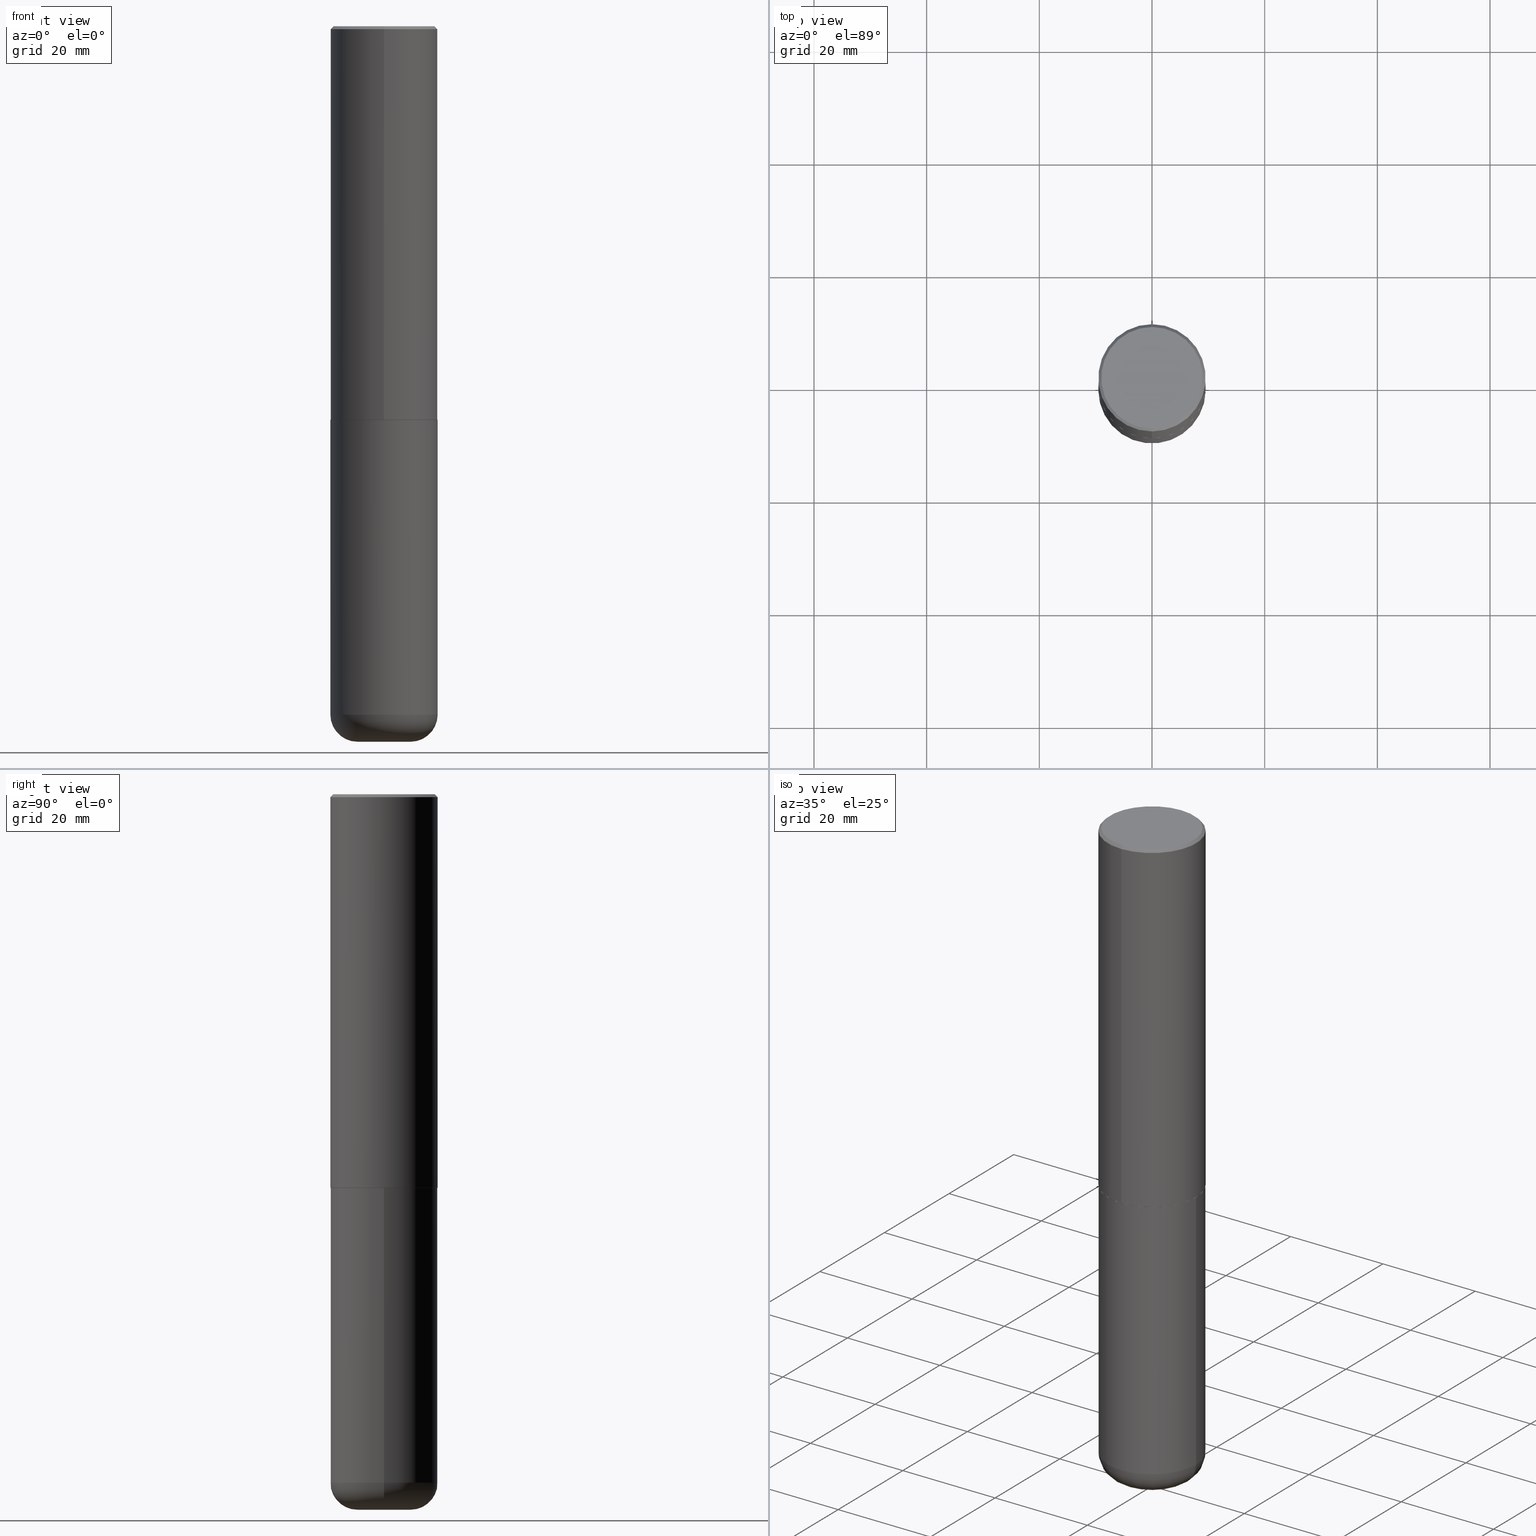
[diagram: canonical four-view strip — front | top / right | iso, engineering-drawing reading convention]
A machine part, canonical four-view strip (front | top / right | iso — engineering-drawing reading convention). The complete STEP part file that produces these views, byte-faithful:
ISO-10303-21;
HEADER;
FILE_DESCRIPTION (( 'STEP AP203' ),
    '1' );
FILE_NAME ('37681.STEP',
    '2024-03-02T08:05:58',
    ( '' ),
    ( '' ),
    'SwSTEP 2.0',
    'SolidWorks 2023',
    '' );
FILE_SCHEMA (( 'CONFIG_CONTROL_DESIGN' ));
ENDSEC;

DATA;
#1 = CONICAL_SURFACE ( 'NONE', #75, 0.3739999999999999991, 0.7853981633977213939 ) ;
#2 = ORIENTED_EDGE ( 'NONE', *, *, #265, .F. ) ;
#3 = ORIENTED_EDGE ( 'NONE', *, *, #187, .T. ) ;
#4 = DIRECTION ( 'NONE',  ( -2.445468806185136597E-29, 3.491481338843145583E-15, 1.000000000000000000 ) ) ;
#5 = ORIENTED_EDGE ( 'NONE', *, *, #23, .F. ) ;
#6 = CARTESIAN_POINT ( 'NONE',  ( 0.1850000000000000533, -1.808587333520749010E-14, -4.810000000000000497 ) ) ;
#7 = AXIS2_PLACEMENT_3D ( 'NONE', #410, #127, #166 ) ;
#8 = VECTOR ( 'NONE', #183, 39.37007874015748143 ) ;
#9 = VERTEX_POINT ( 'NONE', #236 ) ;
#10 = CARTESIAN_POINT ( 'NONE',  ( -2.504081769186608216E-15, -0.3549999999999999822, 1.285848347115290366E-15 ) ) ;
#11 = ORIENTED_EDGE ( 'NONE', *, *, #29, .F. ) ;
#12 = DIRECTION ( 'NONE',  ( -6.982962677686266711E-15, -1.000000000000000000, 3.491481338843145583E-15 ) ) ;
#13 = DIRECTION ( 'NONE',  ( -2.446040391741596606E-29, 3.490662795793665557E-15, 1.000000000000000000 ) ) ;
#14 = COORDINATED_UNIVERSAL_TIME_OFFSET ( 5, 0, .BEHIND. ) ;
#15 = CARTESIAN_POINT ( 'NONE',  ( -2.572686749164323547E-15, -0.3750000000000001110, -0.01999999999999877570 ) ) ;
#16 = CIRCLE ( 'NONE', #74, 0.3750000000000000555 ) ;
#17 = AXIS2_PLACEMENT_3D ( 'NONE', #19, #383, #122 ) ;
#18 = CARTESIAN_POINT ( 'NONE',  ( 1.176270495775050811E-28, -1.679402523983553013E-14, -4.810000000000000497 ) ) ;
#19 = CARTESIAN_POINT ( 'NONE',  ( 0.000000000000000000, 0.000000000000000000, 0.000000000000000000 ) ) ;
#20 = DIRECTION ( 'NONE',  ( 1.000000000000000000, -6.982962677686265922E-15, 0.000000000000000000 ) ) ;
#21 = DIRECTION ( 'NONE',  ( -6.982962677686266711E-15, -1.000000000000000000, 2.921762560068730595E-15 ) ) ;
#22 = LOCAL_TIME ( 3, 5, 58.00000000000000000, #169 ) ;
#23 = EDGE_CURVE ( 'NONE', #9, #397, #328, .T. ) ;
#24 = DIRECTION ( 'NONE',  ( -6.982962677686265922E-15, -1.000000000000000000, 2.913971193241877611E-15 ) ) ;
#25 = APPROVAL_ROLE ( '' ) ;
#26 = ORIENTED_EDGE ( 'NONE', *, *, #144, .T. ) ;
#27 = EDGE_CURVE ( 'NONE', #181, #38, #215, .T. ) ;
#28 = PERSON_AND_ORGANIZATION ( #135, #381 ) ;
#29 = EDGE_CURVE ( 'NONE', #228, #9, #192, .T. ) ;
#30 = CARTESIAN_POINT ( 'NONE',  ( 1.176270495775050811E-28, -1.679402523983553013E-14, -4.810000000000000497 ) ) ;
#31 = DIRECTION ( 'NONE',  ( 1.000000000000000000, -6.982962677686272233E-15, 0.000000000000000000 ) ) ;
#32 = CALENDAR_DATE ( 2024, 2, 3 ) ;
#33 = DIRECTION ( 'NONE',  ( -2.446040391741596606E-29, 3.490662795793665557E-15, 1.000000000000000000 ) ) ;
#34 = ADVANCED_FACE ( 'NONE', ( #378 ), #113, .T. ) ;
#35 = PERSON_AND_ORGANIZATION ( #135, #381 ) ;
#36 = SHAPE_DEFINITION_REPRESENTATION ( #244, #68 ) ;
#37 = ORIENTED_EDGE ( 'NONE', *, *, #116, .F. ) ;
#38 = VERTEX_POINT ( 'NONE', #51 ) ;
#39 = ADVANCED_FACE ( 'NONE', ( #307 ), #257, .T. ) ;
#40 = CIRCLE ( 'NONE', #323, 0.3750000000000000555 ) ;
#41 = DIRECTION ( 'NONE',  ( 1.000000000000000000, -6.982962677686272233E-15, 0.000000000000000000 ) ) ;
#42 = ORIENTED_EDGE ( 'NONE', *, *, #412, .F. ) ;
#43 = ORIENTED_EDGE ( 'NONE', *, *, #272, .T. ) ;
#44 = CARTESIAN_POINT ( 'NONE',  ( 6.725039217009124520E-29, -9.601573681818649859E-15, -2.750000000000000000 ) ) ;
#45 = ORIENTED_EDGE ( 'NONE', *, *, #29, .T. ) ;
#46 = PLANE ( 'NONE',  #131 ) ;
#47 = CIRCLE ( 'NONE', #339, 0.1899999999999999190 ) ;
#48 = FACE_OUTER_BOUND ( 'NONE', #273, .T. ) ;
#49 = VERTEX_POINT ( 'NONE', #403 ) ;
#50 = DIRECTION ( 'NONE',  ( -6.982962677686265922E-15, -1.000000000000000000, 3.490662795793665557E-15 ) ) ;
#51 = CARTESIAN_POINT ( 'NONE',  ( 0.3750000000000000555, -1.222018468595100145E-14, -2.750000000000000000 ) ) ;
#52 = APPROVAL_STATUS ( 'not_yet_approved' ) ;
#53 = CARTESIAN_POINT ( 'NONE',  ( 0.3750000000000001110, -2.618611004132350411E-15, 1.828566290923476483E-29 ) ) ;
#54 = PERSON_AND_ORGANIZATION_ROLE ( 'creator' ) ;
#55 = FACE_OUTER_BOUND ( 'NONE', #101, .T. ) ;
#56 = DATE_AND_TIME ( #128, #330 ) ;
#57 = DIRECTION ( 'NONE',  ( 2.446040391741596606E-29, -3.490662795793665557E-15, -1.000000000000000000 ) ) ;
#58 = DIRECTION ( 'NONE',  ( -2.445468806185136597E-29, 3.491481338843145583E-15, 1.000000000000000000 ) ) ;
#59 = PERSON_AND_ORGANIZATION ( #135, #381 ) ;
#60 = DIRECTION ( 'NONE',  ( -6.982962677686265922E-15, -1.000000000000000000, 2.913971193241877611E-15 ) ) ;
#61 = MECHANICAL_CONTEXT ( 'NONE', #234, 'mechanical' ) ;
#62 = AXIS2_PLACEMENT_3D ( 'NONE', #198, #190, #232 ) ;
#63 = APPROVAL_PERSON_ORGANIZATION ( #28, #365, #69 ) ;
#64 = ORIENTED_EDGE ( 'NONE', *, *, #412, .T. ) ;
#65 = EDGE_CURVE ( 'NONE', #49, #208, #385, .T. ) ;
#66 = DIRECTION ( 'NONE',  ( -6.982962677686266711E-15, -1.000000000000000000, 2.921762560068730595E-15 ) ) ;
#67 = EDGE_CURVE ( 'NONE', #359, #71, #88, .T. ) ;
#68 = ADVANCED_BREP_SHAPE_REPRESENTATION ( '37681', ( #250, #237, #17 ), #179 ) ;
#69 = APPROVAL_ROLE ( '' ) ;
#70 = EDGE_CURVE ( 'NONE', #359, #271, #286, .T. ) ;
#71 = VERTEX_POINT ( 'NONE', #90 ) ;
#72 = ADVANCED_FACE ( 'NONE', ( #343 ), #123, .T. ) ;
#73 = DIRECTION ( 'NONE',  ( -2.446040391741596606E-29, 3.490662795793665557E-15, 1.000000000000000000 ) ) ;
#74 = AXIS2_PLACEMENT_3D ( 'NONE', #182, #243, #367 ) ;
#75 = AXIS2_PLACEMENT_3D ( 'NONE', #375, #184, #186 ) ;
#76 = ORIENTED_EDGE ( 'NONE', *, *, #70, .T. ) ;
#77 = LINE ( 'NONE', #276, #222 ) ;
#78 = ADVANCED_FACE ( 'NONE', ( #48 ), #180, .F. ) ;
#79 = DIRECTION ( 'NONE',  ( 6.982962677686265922E-15, 1.000000000000000000, -3.490662795793665557E-15 ) ) ;
#80 = EDGE_LOOP ( 'NONE', ( #147, #76, #266, #37 ) ) ;
#81 = EDGE_CURVE ( 'NONE', #210, #9, #399, .T. ) ;
#82 = EDGE_LOOP ( 'NONE', ( #294, #207, #176, #26 ) ) ;
#83 = AXIS2_PLACEMENT_3D ( 'NONE', #374, #58, #346 ) ;
#84 = VECTOR ( 'NONE', #314, 39.37007874015748143 ) ;
#85 = CARTESIAN_POINT ( 'NONE',  ( -2.618611004132284935E-15, -0.3750000000000099920, -2.748999999999999222 ) ) ;
#86 = CARTESIAN_POINT ( 'NONE',  ( 0.000000000000000000, 0.000000000000000000, 0.000000000000000000 ) ) ;
#87 = FACE_OUTER_BOUND ( 'NONE', #398, .T. ) ;
#88 = CIRCLE ( 'NONE', #7, 0.3549999999999999822 ) ;
#89 = DIRECTION ( 'NONE',  ( 1.000000000000000000, -6.982962677686265922E-15, 4.876176775795935793E-29 ) ) ;
#90 = CARTESIAN_POINT ( 'NONE',  ( 2.548781377355487113E-15, 0.3549999999999999822, -1.192522237898212341E-15 ) ) ;
#91 = APPROVAL ( #134, 'UNSPECIFIED' ) ;
#92 = CARTESIAN_POINT ( 'NONE',  ( 6.724165036897648492E-29, -9.595832025636787455E-15, -2.749000000000000110 ) ) ;
#93 = APPLICATION_PROTOCOL_DEFINITION ( 'international standard', 'config_control_design', 1994, #234 ) ;
#94 = ORIENTED_EDGE ( 'NONE', *, *, #23, .T. ) ;
#95 = CIRCLE ( 'NONE', #258, 0.3739999999999999991 ) ;
#96 = DIRECTION ( 'NONE',  ( -2.445468806185136597E-29, 3.491481338843145583E-15, 1.000000000000000000 ) ) ;
#97 = APPROVAL_STATUS ( 'not_yet_approved' ) ;
#98 = ADVANCED_FACE ( 'NONE', ( #372 ), #157, .T. ) ;
#99 = DIRECTION ( 'NONE',  ( -1.000000000000000000, 7.105427357601001070E-15, 0.000000000000000000 ) ) ;
#100 = CIRCLE ( 'NONE', #348, 0.3750000000000001110 ) ;
#101 = EDGE_LOOP ( 'NONE', ( #152, #3, #211, #175 ) ) ;
#102 = ADVANCED_FACE ( 'NONE', ( #345 ), #229, .T. ) ;
#103 = DIRECTION ( 'NONE',  ( 2.446040391741596045E-29, -3.490662795793665557E-15, -1.000000000000000000 ) ) ;
#104 = ORIENTED_EDGE ( 'NONE', *, *, #400, .T. ) ;
#105 = CARTESIAN_POINT ( 'NONE',  ( 2.660982545421643429E-15, 0.3739999999999903957, -2.750000000000000888 ) ) ;
#106 = ORIENTED_EDGE ( 'NONE', *, *, #187, .F. ) ;
#107 = ORIENTED_EDGE ( 'NONE', *, *, #272, .F. ) ;
#108 = CARTESIAN_POINT ( 'NONE',  ( 6.726611077289389265E-29, -9.599322688432580971E-15, -2.750000000000000000 ) ) ;
#109 = VECTOR ( 'NONE', #252, 39.37007874015748143 ) ;
#110 = ORIENTED_EDGE ( 'NONE', *, *, #146, .T. ) ;
#111 = ADVANCED_FACE ( 'NONE', ( #55 ), #267, .T. ) ;
#112 = ORIENTED_EDGE ( 'NONE', *, *, #27, .F. ) ;
#113 = CYLINDRICAL_SURFACE ( 'NONE', #248, 0.3750000000000002220 ) ;
#114 = DIRECTION ( 'NONE',  ( -2.446040391741596606E-29, 3.490662795793665557E-15, 1.000000000000000000 ) ) ;
#115 = AXIS2_PLACEMENT_3D ( 'NONE', #86, #13, #281 ) ;
#116 = EDGE_CURVE ( 'NONE', #71, #397, #401, .T. ) ;
#117 = CARTESIAN_POINT ( 'NONE',  ( 6.726611077289389265E-29, -9.599322688432580971E-15, -2.750000000000000000 ) ) ;
#118 = CARTESIAN_POINT ( 'NONE',  ( 2.618611004132350411E-15, 0.3749999999999999445, -0.02000000000000139513 ) ) ;
#119 = DIRECTION ( 'NONE',  ( 2.446040391741596606E-29, -3.490662795793665557E-15, -1.000000000000000000 ) ) ;
#120 = CARTESIAN_POINT ( 'NONE',  ( -2.618611004132351594E-15, -0.3750000000000002220, 1.308998548422625521E-15 ) ) ;
#121 = DIRECTION ( 'NONE',  ( 2.438088387897960049E-29, -3.491481338843145188E-15, -1.000000000000000000 ) ) ;
#122 = DIRECTION ( 'NONE',  ( 1.000000000000000000, 0.000000000000000000, 0.000000000000000000 ) ) ;
#123 = CONICAL_SURFACE ( 'NONE', #356, 0.3750000000000000555, 0.7853981633974465026 ) ;
#124 = AXIS2_PLACEMENT_3D ( 'NONE', #108, #114, #278 ) ;
#125 = CC_DESIGN_PERSON_AND_ORGANIZATION_ASSIGNMENT ( #35, #321, ( #362 ) ) ;
#126 = CARTESIAN_POINT ( 'NONE',  ( 4.892080783483214581E-31, -6.981325591587361238E-17, -0.02000000000000008715 ) ) ;
#127 = DIRECTION ( 'NONE',  ( -2.446040391741596606E-29, 3.490662795793665557E-15, 1.000000000000000000 ) ) ;
#128 = CALENDAR_DATE ( 2024, 2, 3 ) ;
#129 = DIRECTION ( 'NONE',  ( -2.446040391741596606E-29, 3.490662795793665557E-15, 1.000000000000000000 ) ) ;
#130 = ADVANCED_FACE ( 'NONE', ( #313 ), #293, .T. ) ;
#131 = AXIS2_PLACEMENT_3D ( 'NONE', #178, #306, #153 ) ;
#132 = LOCAL_TIME ( 3, 5, 58.00000000000000000, #14 ) ;
#133 = DIRECTION ( 'NONE',  ( 7.105427357601001859E-15, 1.000000000000000000, -3.491481338843145583E-15 ) ) ;
#134 = APPROVAL_STATUS ( 'not_yet_approved' ) ;
#135 = PERSON ( 'UNSPECIFIED', 'UNSPECIFIED', 'UNSPECIFIED', ('UNSPECIFIED'), ('UNSPECIFIED'), ('UNSPECIFIED') ) ;
#136 = DATE_AND_TIME ( #32, #324 ) ;
#137 = ORIENTED_EDGE ( 'NONE', *, *, #334, .T. ) ;
#138 = PLANE ( 'NONE',  #221 ) ;
#139 = ORIENTED_EDGE ( 'NONE', *, *, #27, .T. ) ;
#140 = CC_DESIGN_APPROVAL ( #365, ( #362 ) ) ;
#141 = CC_DESIGN_PERSON_AND_ORGANIZATION_ASSIGNMENT ( #404, #253, ( #300 ) ) ;
#142 = EDGE_LOOP ( 'NONE', ( #391, #137, #240, #112 ) ) ;
#143 = DIRECTION ( 'NONE',  ( 1.000000000000000000, -6.982962677686266711E-15, 0.000000000000000000 ) ) ;
#144 = EDGE_CURVE ( 'NONE', #397, #271, #40, .T. ) ;
#145 = EDGE_LOOP ( 'NONE', ( #45, #94, #2, #197 ) ) ;
#146 = EDGE_CURVE ( 'NONE', #363, #181, #185, .T. ) ;
#147 = ORIENTED_EDGE ( 'NONE', *, *, #67, .F. ) ;
#148 = DIRECTION ( 'NONE',  ( -2.445468806185136877E-29, 3.491481338843145188E-15, 1.000000000000000000 ) ) ;
#149 = AXIS2_PLACEMENT_3D ( 'NONE', #350, #259, #291 ) ;
#150 = ORIENTED_EDGE ( 'NONE', *, *, #384, .T. ) ;
#151 = DIRECTION ( 'NONE',  ( 6.982962677686265922E-15, 1.000000000000000000, -3.494488891895536035E-15 ) ) ;
#152 = ORIENTED_EDGE ( 'NONE', *, *, #214, .T. ) ;
#153 = DIRECTION ( 'NONE',  ( -6.982962677686265922E-15, -1.000000000000000000, 3.490662795793665557E-15 ) ) ;
#154 = EDGE_CURVE ( 'NONE', #181, #363, #100, .T. ) ;
#155 = LENGTH_MEASURE_WITH_UNIT ( LENGTH_MEASURE( 0.02539999999999999897 ), #407 );
#156 = AXIS2_PLACEMENT_3D ( 'NONE', #297, #4, #209 ) ;
#157 = CYLINDRICAL_SURFACE ( 'NONE', #115, 0.3750000000000002220 ) ;
#158 = CARTESIAN_POINT ( 'NONE',  ( 0.000000000000000000, 0.000000000000000000, 0.000000000000000000 ) ) ;
#159 =( CONVERSION_BASED_UNIT ( 'INCH', #155 ) LENGTH_UNIT ( ) NAMED_UNIT ( #204 ) );
#160 = ADVANCED_FACE ( 'NONE', ( #288 ), #408, .T. ) ;
#161 = DIRECTION ( 'NONE',  ( -2.445468806185136877E-29, 3.491481338843145188E-15, 1.000000000000000000 ) ) ;
#162 =( NAMED_UNIT ( * ) PLANE_ANGLE_UNIT ( ) SI_UNIT ( $, .RADIAN. ) );
#163 = AXIS2_PLACEMENT_3D ( 'NONE', #238, #335, #41 ) ;
#164 = FACE_OUTER_BOUND ( 'NONE', #142, .T. ) ;
#165 = EDGE_CURVE ( 'NONE', #38, #340, #396, .T. ) ;
#166 = DIRECTION ( 'NONE',  ( -6.982962677686265922E-15, -1.000000000000000000, 3.490662795793665557E-15 ) ) ;
#167 = VECTOR ( 'NONE', #188, 39.37007874015748143 ) ;
#168 = CC_DESIGN_APPROVAL ( #417, ( #261 ) ) ;
#169 = COORDINATED_UNIVERSAL_TIME_OFFSET ( 5, 0, .BEHIND. ) ;
#170 = EDGE_CURVE ( 'NONE', #9, #228, #406, .T. ) ;
#171 = ORIENTED_EDGE ( 'NONE', *, *, #65, .F. ) ;
#172 = VECTOR ( 'NONE', #73, 39.37007874015748143 ) ;
#173 = CARTESIAN_POINT ( 'NONE',  ( 2.664535259100376880E-15, 0.3750000000000002220, -1.308998548422625521E-15 ) ) ;
#174 = CYLINDRICAL_SURFACE ( 'NONE', #156, 0.3750000000000001110 ) ;
#175 = ORIENTED_EDGE ( 'NONE', *, *, #308, .F. ) ;
#176 = ORIENTED_EDGE ( 'NONE', *, *, #116, .T. ) ;
#177 = ORIENTED_EDGE ( 'NONE', *, *, #326, .T. ) ;
#178 = CARTESIAN_POINT ( 'NONE',  ( 6.726611077289389265E-29, -9.599322688432580971E-15, -2.750000000000000000 ) ) ;
#179 =( GEOMETRIC_REPRESENTATION_CONTEXT ( 3 ) GLOBAL_UNCERTAINTY_ASSIGNED_CONTEXT ( ( #409 ) ) GLOBAL_UNIT_ASSIGNED_CONTEXT ( ( #159, #162, #312 ) ) REPRESENTATION_CONTEXT ( 'NONE', 'WORKASPACE' ) );
#180 = PLANE ( 'NONE',  #377 ) ;
#181 = VERTEX_POINT ( 'NONE', #319 ) ;
#182 = CARTESIAN_POINT ( 'NONE',  ( 4.892080783483214581E-31, -6.981325591587361238E-17, -0.02000000000000008715 ) ) ;
#183 = DIRECTION ( 'NONE',  ( -4.937700262165896205E-15, -0.7071067811867381980, 0.7071067811863568364 ) ) ;
#184 = DIRECTION ( 'NONE',  ( -2.446040391741596606E-29, 3.490662795793665557E-15, 1.000000000000000000 ) ) ;
#185 = CIRCLE ( 'NONE', #322, 0.3750000000000001110 ) ;
#186 = DIRECTION ( 'NONE',  ( -6.982962677686266711E-15, -1.000000000000000000, 2.921762560068730595E-15 ) ) ;
#187 = EDGE_CURVE ( 'NONE', #49, #363, #47, .T. ) ;
#188 = DIRECTION ( 'NONE',  ( 4.937700262164538576E-15, 0.7071067811865437980, -0.7071067811865512365 ) ) ;
#189 = DIRECTION ( 'NONE',  ( -2.445468806185136597E-29, 3.491481338843145583E-15, 1.000000000000000000 ) ) ;
#190 = DIRECTION ( 'NONE',  ( -2.445468806185136597E-29, 3.491481338843145583E-15, 1.000000000000000000 ) ) ;
#191 = APPROVAL_ROLE ( '' ) ;
#192 = CIRCLE ( 'NONE', #352, 0.3750000000000003886 ) ;
#193 = CC_DESIGN_APPROVAL ( #91, ( #213 ) ) ;
#194 = DESIGN_CONTEXT ( 'detailed design', #298, 'design' ) ;
#195 = CARTESIAN_POINT ( 'NONE',  ( 1.222734403092568523E-28, -1.745740669421572989E-14, -5.000000000000000000 ) ) ;
#196 = DATE_TIME_ROLE ( 'classification_date' ) ;
#197 = ORIENTED_EDGE ( 'NONE', *, *, #400, .F. ) ;
#198 = CARTESIAN_POINT ( 'NONE',  ( 6.725039217009124520E-29, -9.601573681818649859E-15, -2.750000000000000000 ) ) ;
#199 = DATE_AND_TIME ( #262, #22 ) ;
#200 = DIRECTION ( 'NONE',  ( -2.445468806185136597E-29, 3.491481338843145583E-15, 1.000000000000000000 ) ) ;
#201 = SECURITY_CLASSIFICATION_LEVEL ( 'unclassified' ) ;
#202 = ADVANCED_FACE ( 'NONE', ( #355 ), #138, .F. ) ;
#203 = COORDINATED_UNIVERSAL_TIME_OFFSET ( 5, 0, .BEHIND. ) ;
#204 = DIMENSIONAL_EXPONENTS ( 1.000000000000000000, 0.000000000000000000, 0.000000000000000000, 0.000000000000000000, 0.000000000000000000, 0.000000000000000000, 0.000000000000000000 ) ;
#205 = ORIENTED_EDGE ( 'NONE', *, *, #334, .F. ) ;
#206 = AXIS2_PLACEMENT_3D ( 'NONE', #364, #332, #50 ) ;
#207 = ORIENTED_EDGE ( 'NONE', *, *, #239, .F. ) ;
#208 = VERTEX_POINT ( 'NONE', #235 ) ;
#209 = DIRECTION ( 'NONE',  ( 1.000000000000000000, -6.982962677686265922E-15, 4.876176775795935793E-29 ) ) ;
#210 = VERTEX_POINT ( 'NONE', #105 ) ;
#211 = ORIENTED_EDGE ( 'NONE', *, *, #154, .F. ) ;
#212 = AXIS2_PLACEMENT_3D ( 'NONE', #220, #57, #223 ) ;
#213 = PRODUCT_DEFINITION_FORMATION_WITH_SPECIFIED_SOURCE ( 'ANY', '', #300, .NOT_KNOWN. ) ;
#214 = EDGE_CURVE ( 'NONE', #208, #49, #283, .T. ) ;
#215 = LINE ( 'NONE', #53, #263 ) ;
#216 = CARTESIAN_POINT ( 'NONE',  ( -2.572686749164323547E-15, -0.3750000000000001110, -0.01999999999999877570 ) ) ;
#217 = DIRECTION ( 'NONE',  ( -4.851104656540954809E-15, -0.7071067811865486830, -0.7071067811865463515 ) ) ;
#218 = CARTESIAN_POINT ( 'NONE',  ( 6.724165036897648492E-29, -9.595832025636787455E-15, -2.749000000000000110 ) ) ;
#219 = DATE_TIME_ROLE ( 'creation_date' ) ;
#220 = CARTESIAN_POINT ( 'NONE',  ( 4.892080783483214581E-31, -6.981325591587361238E-17, -0.02000000000000008715 ) ) ;
#221 = AXIS2_PLACEMENT_3D ( 'NONE', #393, #103, #79 ) ;
#222 = VECTOR ( 'NONE', #148, 39.37007874015748143 ) ;
#223 = DIRECTION ( 'NONE',  ( 6.982962677686265922E-15, 1.000000000000000000, -3.494488891895536035E-15 ) ) ;
#224 = DIRECTION ( 'NONE',  ( -6.982962677686266711E-15, -1.000000000000000000, 3.490662795793665951E-15 ) ) ;
#225 = DIRECTION ( 'NONE',  ( 1.000000000000000000, -6.982962677686265922E-15, 0.000000000000000000 ) ) ;
#226 = CARTESIAN_POINT ( 'NONE',  ( 6.726611077289389265E-29, -9.599322688432580971E-15, -2.750000000000000000 ) ) ;
#227 = ADVANCED_FACE ( 'NONE', ( #301 ), #174, .T. ) ;
#228 = VERTEX_POINT ( 'NONE', #85 ) ;
#229 = CONICAL_SURFACE ( 'NONE', #212, 0.3750000000000000555, 0.7853981633974465026 ) ;
#230 = DIRECTION ( 'NONE',  ( -6.982962677686265922E-15, -1.000000000000000000, 3.494488891895536035E-15 ) ) ;
#231 = COORDINATED_UNIVERSAL_TIME_OFFSET ( 5, 0, .BEHIND. ) ;
#232 = DIRECTION ( 'NONE',  ( 1.000000000000000000, -6.982962677686266711E-15, 0.000000000000000000 ) ) ;
#233 = AXIS2_PLACEMENT_3D ( 'NONE', #92, #289, #24 ) ;
#234 = APPLICATION_CONTEXT ( 'configuration controlled 3d designs of mechanical parts and assemblies' ) ;
#235 = CARTESIAN_POINT ( 'NONE',  ( 0.1850000000000000810, -1.874925478958768986E-14, -5.000000000000000000 ) ) ;
#236 = CARTESIAN_POINT ( 'NONE',  ( 2.664535259100411196E-15, 0.3749999999999907296, -2.749000000000000998 ) ) ;
#237 = MANIFOLD_SOLID_BREP ( 'Body-Move/Copy2[2]', #389 ) ;
#238 = CARTESIAN_POINT ( 'NONE',  ( 1.222734403092568523E-28, -1.745740669421572989E-14, -5.000000000000000000 ) ) ;
#239 = EDGE_CURVE ( 'NONE', #71, #359, #329, .T. ) ;
#240 = ORIENTED_EDGE ( 'NONE', *, *, #165, .F. ) ;
#241 = AXIS2_PLACEMENT_3D ( 'NONE', #6, #12, #280 ) ;
#242 = ORIENTED_EDGE ( 'NONE', *, *, #170, .F. ) ;
#243 = DIRECTION ( 'NONE',  ( -2.446040391741596606E-29, 3.490662795793665557E-15, 1.000000000000000000 ) ) ;
#244 = PRODUCT_DEFINITION_SHAPE ( 'NONE', 'NONE',  #261 ) ;
#245 = EDGE_LOOP ( 'NONE', ( #5, #296, #104, #368 ) ) ;
#246 = EDGE_LOOP ( 'NONE', ( #270, #64, #150, #242 ) ) ;
#247 = DIRECTION ( 'NONE',  ( -1.000000000000000000, 6.982962677686265922E-15, -4.876176775795935793E-29 ) ) ;
#248 = AXIS2_PLACEMENT_3D ( 'NONE', #158, #341, #224 ) ;
#249 = LOCAL_TIME ( 3, 5, 58.00000000000000000, #203 ) ;
#250 = MANIFOLD_SOLID_BREP ( 'Body-Move/Copy2[1]', #370 ) ;
#251 = CYLINDRICAL_SURFACE ( 'NONE', #357, 0.3750000000000001110 ) ;
#252 = DIRECTION ( 'NONE',  ( 5.024295867789434219E-15, 0.7071067811867430830, 0.7071067811863519514 ) ) ;
#253 = PERSON_AND_ORGANIZATION_ROLE ( 'design_owner' ) ;
#254 = DIRECTION ( 'NONE',  ( 1.000000000000000000, -6.982962677686269077E-15, 4.883557194083113462E-29 ) ) ;
#255 = DIRECTION ( 'NONE',  ( -2.446040391741596606E-29, 3.490662795793665557E-15, 1.000000000000000000 ) ) ;
#256 = DATE_AND_TIME ( #405, #132 ) ;
#257 = TOROIDAL_SURFACE ( 'NONE', #83, 0.1850000000000000533, 0.1899999999999999467 ) ;
#258 = AXIS2_PLACEMENT_3D ( 'NONE', #226, #316, #21 ) ;
#259 = DIRECTION ( 'NONE',  ( 2.438088387897960049E-29, -3.491481338843145188E-15, -1.000000000000000000 ) ) ;
#260 = APPROVAL_DATE_TIME ( #56, #417 ) ;
#261 = PRODUCT_DEFINITION ( 'UNKNOWN', '', #213, #194 ) ;
#262 = CALENDAR_DATE ( 2024, 2, 3 ) ;
#263 = VECTOR ( 'NONE', #161, 39.37007874015748143 ) ;
#264 = PERSON_AND_ORGANIZATION_ROLE ( 'creator' ) ;
#265 = EDGE_CURVE ( 'NONE', #271, #397, #16, .T. ) ;
#266 = ORIENTED_EDGE ( 'NONE', *, *, #265, .T. ) ;
#267 = TOROIDAL_SURFACE ( 'NONE', #317, 0.1850000000000000533, 0.1899999999999999467 ) ;
#268 = CIRCLE ( 'NONE', #124, 0.3739999999999999991 ) ;
#269 = APPROVAL_DATE_TIME ( #325, #91 ) ;
#270 = ORIENTED_EDGE ( 'NONE', *, *, #81, .F. ) ;
#271 = VERTEX_POINT ( 'NONE', #216 ) ;
#272 = EDGE_CURVE ( 'NONE', #340, #38, #310, .T. ) ;
#273 = EDGE_LOOP ( 'NONE', ( #331, #43 ) ) ;
#274 = AXIS2_PLACEMENT_3D ( 'NONE', #195, #200, #31 ) ;
#275 = ORIENTED_EDGE ( 'NONE', *, *, #384, .F. ) ;
#276 = CARTESIAN_POINT ( 'NONE',  ( -0.3750000000000001110, 2.664535259100376486E-15, -1.844600658845590159E-29 ) ) ;
#277 = ORIENTED_EDGE ( 'NONE', *, *, #326, .F. ) ;
#278 = DIRECTION ( 'NONE',  ( -6.982962677686266711E-15, -1.000000000000000000, 2.921762560068730595E-15 ) ) ;
#279 = CARTESIAN_POINT ( 'NONE',  ( 6.725039217009124520E-29, -9.601573681818649859E-15, -2.750000000000000000 ) ) ;
#280 = DIRECTION ( 'NONE',  ( 1.000000000000000000, -6.982962677686264344E-15, 0.000000000000000000 ) ) ;
#281 = DIRECTION ( 'NONE',  ( -6.982962677686266711E-15, -1.000000000000000000, 3.490662795793665951E-15 ) ) ;
#282 = PERSON_AND_ORGANIZATION ( #135, #381 ) ;
#283 = CIRCLE ( 'NONE', #163, 0.1850000000000000810 ) ;
#284 = ADVANCED_FACE ( 'NONE', ( #395 ), #46, .F. ) ;
#285 = CARTESIAN_POINT ( 'NONE',  ( -2.611628041454596160E-15, -0.3740000000000096581, -2.749999999999998668 ) ) ;
#286 = LINE ( 'NONE', #15, #290 ) ;
#287 = CARTESIAN_POINT ( 'NONE',  ( 0.000000000000000000, 0.000000000000000000, 0.000000000000000000 ) ) ;
#288 = FACE_OUTER_BOUND ( 'NONE', #394, .T. ) ;
#289 = DIRECTION ( 'NONE',  ( -2.446040391741596606E-29, 3.490662795793665557E-15, 1.000000000000000000 ) ) ;
#290 = VECTOR ( 'NONE', #217, 39.37007874015748143 ) ;
#291 = DIRECTION ( 'NONE',  ( -1.000000000000000000, 6.982962677686265922E-15, -4.876176775795935793E-29 ) ) ;
#292 = APPROVAL_DATE_TIME ( #136, #365 ) ;
#293 = CONICAL_SURFACE ( 'NONE', #402, 0.3739999999999999991, 0.7853981633977213939 ) ;
#294 = ORIENTED_EDGE ( 'NONE', *, *, #70, .F. ) ;
#295 = CC_DESIGN_PERSON_AND_ORGANIZATION_ASSIGNMENT ( #282, #54, ( #261 ) ) ;
#296 = ORIENTED_EDGE ( 'NONE', *, *, #170, .T. ) ;
#297 = CARTESIAN_POINT ( 'NONE',  ( 0.000000000000000000, 0.000000000000000000, 0.000000000000000000 ) ) ;
#298 = APPLICATION_CONTEXT ( 'configuration controlled 3d designs of mechanical parts and assemblies' ) ;
#299 = ORIENTED_EDGE ( 'NONE', *, *, #146, .F. ) ;
#300 = PRODUCT ( '37681', '37681', '', ( #61 ) ) ;
#301 = FACE_OUTER_BOUND ( 'NONE', #327, .T. ) ;
#302 = CC_DESIGN_PERSON_AND_ORGANIZATION_ASSIGNMENT ( #386, #387, ( #213 ) ) ;
#303 = ORIENTED_EDGE ( 'NONE', *, *, #65, .T. ) ;
#304 = CARTESIAN_POINT ( 'NONE',  ( -0.3750000000000000555, -1.053326420172671351E-14, -2.750000000000000000 ) ) ;
#305 = EDGE_LOOP ( 'NONE', ( #360, #392 ) ) ;
#306 = DIRECTION ( 'NONE',  ( -2.446040391741596045E-29, 3.490662795793665557E-15, 1.000000000000000000 ) ) ;
#307 = FACE_OUTER_BOUND ( 'NONE', #366, .T. ) ;
#308 = EDGE_CURVE ( 'NONE', #208, #181, #361, .T. ) ;
#309 = CARTESIAN_POINT ( 'NONE',  ( -2.611628041454596160E-15, -0.3740000000000096581, -2.749999999999998668 ) ) ;
#310 = CIRCLE ( 'NONE', #414, 0.3750000000000000555 ) ;
#311 = CARTESIAN_POINT ( 'NONE',  ( 2.618611004132350411E-15, 0.3749999999999999445, -0.02000000000000139513 ) ) ;
#312 =( NAMED_UNIT ( * ) SI_UNIT ( $, .STERADIAN. ) SOLID_ANGLE_UNIT ( ) );
#313 = FACE_OUTER_BOUND ( 'NONE', #246, .T. ) ;
#314 = DIRECTION ( 'NONE',  ( -2.446040391741596606E-29, 3.490662795793665557E-15, 1.000000000000000000 ) ) ;
#315 = PRODUCT_RELATED_PRODUCT_CATEGORY ( 'detail', '', ( #300 ) ) ;
#316 = DIRECTION ( 'NONE',  ( -2.446040391741596606E-29, 3.490662795793665557E-15, 1.000000000000000000 ) ) ;
#317 = AXIS2_PLACEMENT_3D ( 'NONE', #18, #376, #254 ) ;
#318 = PERSON_AND_ORGANIZATION ( #135, #381 ) ;
#319 = CARTESIAN_POINT ( 'NONE',  ( 0.3750000000000000555, -1.941263624396788015E-14, -4.810000000000000497 ) ) ;
#320 = CARTESIAN_POINT ( 'NONE',  ( -0.1850000000000000533, -1.547952117867934441E-14, -4.810000000000000497 ) ) ;
#321 = PERSON_AND_ORGANIZATION_ROLE ( 'classification_officer' ) ;
#322 = AXIS2_PLACEMENT_3D ( 'NONE', #353, #416, #20 ) ;
#323 = AXIS2_PLACEMENT_3D ( 'NONE', #126, #33, #230 ) ;
#324 = LOCAL_TIME ( 3, 5, 58.00000000000000000, #231 ) ;
#325 = DATE_AND_TIME ( #413, #249 ) ;
#326 = EDGE_CURVE ( 'NONE', #418, #210, #268, .T. ) ;
#327 = EDGE_LOOP ( 'NONE', ( #205, #110, #139, #107 ) ) ;
#328 = LINE ( 'NONE', #173, #172 ) ;
#329 = CIRCLE ( 'NONE', #206, 0.3549999999999999822 ) ;
#330 = LOCAL_TIME ( 3, 5, 58.00000000000000000, #411 ) ;
#331 = ORIENTED_EDGE ( 'NONE', *, *, #165, .T. ) ;
#332 = DIRECTION ( 'NONE',  ( -2.446040391741596606E-29, 3.490662795793665557E-15, 1.000000000000000000 ) ) ;
#333 = ORIENTED_EDGE ( 'NONE', *, *, #214, .F. ) ;
#334 = EDGE_CURVE ( 'NONE', #363, #340, #77, .T. ) ;
#335 = DIRECTION ( 'NONE',  ( -2.445468806185136597E-29, 3.491481338843145583E-15, 1.000000000000000000 ) ) ;
#336 = ORIENTED_EDGE ( 'NONE', *, *, #81, .T. ) ;
#337 = DIRECTION ( 'NONE',  ( -2.445468806185136597E-29, 3.491481338843145583E-15, 1.000000000000000000 ) ) ;
#338 = CARTESIAN_POINT ( 'NONE',  ( 4.892080783483214581E-31, -6.981325591587361238E-17, -0.02000000000000008715 ) ) ;
#339 = AXIS2_PLACEMENT_3D ( 'NONE', #320, #133, #99 ) ;
#340 = VERTEX_POINT ( 'NONE', #304 ) ;
#341 = DIRECTION ( 'NONE',  ( -2.446040391741596606E-29, 3.490662795793665557E-15, 1.000000000000000000 ) ) ;
#342 = CARTESIAN_POINT ( 'NONE',  ( -0.3750000000000000555, -1.412948998073515443E-14, -4.810000000000000497 ) ) ;
#343 = FACE_OUTER_BOUND ( 'NONE', #80, .T. ) ;
#344 = LINE ( 'NONE', #309, #8 ) ;
#345 = FACE_OUTER_BOUND ( 'NONE', #82, .T. ) ;
#346 = DIRECTION ( 'NONE',  ( 1.000000000000000000, -6.982962677686269077E-15, 4.883557194083113462E-29 ) ) ;
#347 = PERSON_AND_ORGANIZATION ( #135, #381 ) ;
#348 = AXIS2_PLACEMENT_3D ( 'NONE', #30, #96, #225 ) ;
#349 = APPLICATION_PROTOCOL_DEFINITION ( 'international standard', 'config_control_design', 1994, #298 ) ;
#350 = CARTESIAN_POINT ( 'NONE',  ( 1.222734403092568523E-28, -1.745740669421572989E-14, -5.000000000000000000 ) ) ;
#351 = EDGE_LOOP ( 'NONE', ( #277, #42 ) ) ;
#352 = AXIS2_PLACEMENT_3D ( 'NONE', #218, #255, #60 ) ;
#353 = CARTESIAN_POINT ( 'NONE',  ( 1.176270495775050811E-28, -1.679402523983553013E-14, -4.810000000000000497 ) ) ;
#354 = CC_DESIGN_DATE_AND_TIME_ASSIGNMENT ( #256, #219, ( #261 ) ) ;
#355 = FACE_OUTER_BOUND ( 'NONE', #305, .T. ) ;
#356 = AXIS2_PLACEMENT_3D ( 'NONE', #338, #119, #151 ) ;
#357 = AXIS2_PLACEMENT_3D ( 'NONE', #287, #189, #89 ) ;
#358 = CC_DESIGN_DATE_AND_TIME_ASSIGNMENT ( #199, #196, ( #362 ) ) ;
#359 = VERTEX_POINT ( 'NONE', #10 ) ;
#360 = ORIENTED_EDGE ( 'NONE', *, *, #239, .T. ) ;
#361 = CIRCLE ( 'NONE', #241, 0.1899999999999999190 ) ;
#362 = SECURITY_CLASSIFICATION ( '', '', #201 ) ;
#363 = VERTEX_POINT ( 'NONE', #342 ) ;
#364 = CARTESIAN_POINT ( 'NONE',  ( -1.141397163745304909E-45, 1.628849886601155835E-31, 4.666305460853910467E-17 ) ) ;
#365 = APPROVAL ( #97, 'UNSPECIFIED' ) ;
#366 = EDGE_LOOP ( 'NONE', ( #106, #303, #388, #299 ) ) ;
#367 = DIRECTION ( 'NONE',  ( -6.982962677686265922E-15, -1.000000000000000000, 3.494488891895536035E-15 ) ) ;
#368 = ORIENTED_EDGE ( 'NONE', *, *, #144, .F. ) ;
#369 = CARTESIAN_POINT ( 'NONE',  ( 2.657429831742841742E-15, 0.3739999999999903957, -2.750000000000000888 ) ) ;
#370 = CLOSED_SHELL ( 'NONE', ( #390, #111, #78, #227, #39, #160 ) ) ;
#371 = APPROVAL_PERSON_ORGANIZATION ( #59, #91, #25 ) ;
#372 = FACE_OUTER_BOUND ( 'NONE', #145, .T. ) ;
#373 = ADVANCED_FACE ( 'NONE', ( #87 ), #1, .T. ) ;
#374 = CARTESIAN_POINT ( 'NONE',  ( 1.176270495775050811E-28, -1.679402523983553013E-14, -4.810000000000000497 ) ) ;
#375 = CARTESIAN_POINT ( 'NONE',  ( 6.726611077289389265E-29, -9.599322688432580971E-15, -2.750000000000000000 ) ) ;
#376 = DIRECTION ( 'NONE',  ( -2.445468806185136597E-29, 3.491481338843145583E-15, 1.000000000000000000 ) ) ;
#377 = AXIS2_PLACEMENT_3D ( 'NONE', #279, #121, #247 ) ;
#378 = FACE_OUTER_BOUND ( 'NONE', #245, .T. ) ;
#379 = LINE ( 'NONE', #120, #84 ) ;
#380 = APPROVAL_PERSON_ORGANIZATION ( #347, #417, #191 ) ;
#381 = ORGANIZATION ( 'UNSPECIFIED', 'UNSPECIFIED', '' ) ;
#382 = CC_DESIGN_PERSON_AND_ORGANIZATION_ASSIGNMENT ( #318, #264, ( #213 ) ) ;
#383 = DIRECTION ( 'NONE',  ( 0.000000000000000000, 0.000000000000000000, 1.000000000000000000 ) ) ;
#384 = EDGE_CURVE ( 'NONE', #418, #228, #344, .T. ) ;
#385 = CIRCLE ( 'NONE', #274, 0.1850000000000000810 ) ;
#386 = PERSON_AND_ORGANIZATION ( #135, #381 ) ;
#387 = PERSON_AND_ORGANIZATION_ROLE ( 'design_supplier' ) ;
#388 = ORIENTED_EDGE ( 'NONE', *, *, #308, .T. ) ;
#389 = CLOSED_SHELL ( 'NONE', ( #373, #98, #72, #102, #34, #130, #284, #202 ) ) ;
#390 = ADVANCED_FACE ( 'NONE', ( #164 ), #251, .T. ) ;
#391 = ORIENTED_EDGE ( 'NONE', *, *, #154, .T. ) ;
#392 = ORIENTED_EDGE ( 'NONE', *, *, #67, .T. ) ;
#393 = CARTESIAN_POINT ( 'NONE',  ( 2.478951750578624209E-15, 0.3549999999999999822, -1.215853765202481601E-15 ) ) ;
#394 = EDGE_LOOP ( 'NONE', ( #333, #171 ) ) ;
#395 = FACE_OUTER_BOUND ( 'NONE', #351, .T. ) ;
#396 = CIRCLE ( 'NONE', #62, 0.3750000000000000555 ) ;
#397 = VERTEX_POINT ( 'NONE', #118 ) ;
#398 = EDGE_LOOP ( 'NONE', ( #177, #336, #11, #275 ) ) ;
#399 = LINE ( 'NONE', #369, #109 ) ;
#400 = EDGE_CURVE ( 'NONE', #228, #271, #379, .T. ) ;
#401 = LINE ( 'NONE', #311, #167 ) ;
#402 = AXIS2_PLACEMENT_3D ( 'NONE', #117, #129, #66 ) ;
#403 = CARTESIAN_POINT ( 'NONE',  ( -0.1850000000000000810, -1.513619630689734772E-14, -5.000000000000000000 ) ) ;
#404 = PERSON_AND_ORGANIZATION ( #135, #381 ) ;
#405 = CALENDAR_DATE ( 2024, 2, 3 ) ;
#406 = CIRCLE ( 'NONE', #233, 0.3750000000000003886 ) ;
#407 =( LENGTH_UNIT ( ) NAMED_UNIT ( * ) SI_UNIT ( $, .METRE. ) );
#408 = PLANE ( 'NONE',  #149 ) ;
#409 = UNCERTAINTY_MEASURE_WITH_UNIT (LENGTH_MEASURE( 1.000000000000000082E-05 ), #159, 'distance_accuracy_value', 'NONE');
#410 = CARTESIAN_POINT ( 'NONE',  ( -1.141397163745304909E-45, 1.628849886601155835E-31, 4.666305460853910467E-17 ) ) ;
#411 = COORDINATED_UNIVERSAL_TIME_OFFSET ( 5, 0, .BEHIND. ) ;
#412 = EDGE_CURVE ( 'NONE', #210, #418, #95, .T. ) ;
#413 = CALENDAR_DATE ( 2024, 2, 3 ) ;
#414 = AXIS2_PLACEMENT_3D ( 'NONE', #44, #337, #143 ) ;
#415 = CC_DESIGN_SECURITY_CLASSIFICATION ( #362, ( #213 ) ) ;
#416 = DIRECTION ( 'NONE',  ( -2.445468806185136597E-29, 3.491481338843145583E-15, 1.000000000000000000 ) ) ;
#417 = APPROVAL ( #52, 'UNSPECIFIED' ) ;
#418 = VERTEX_POINT ( 'NONE', #285 ) ;
ENDSEC;
END-ISO-10303-21;
